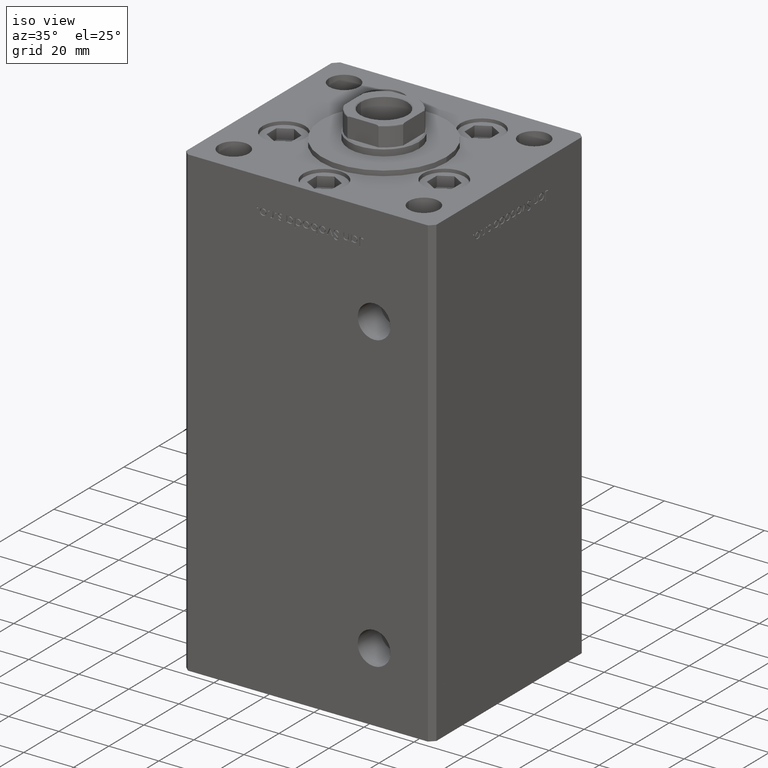
[diagram: clean part render]
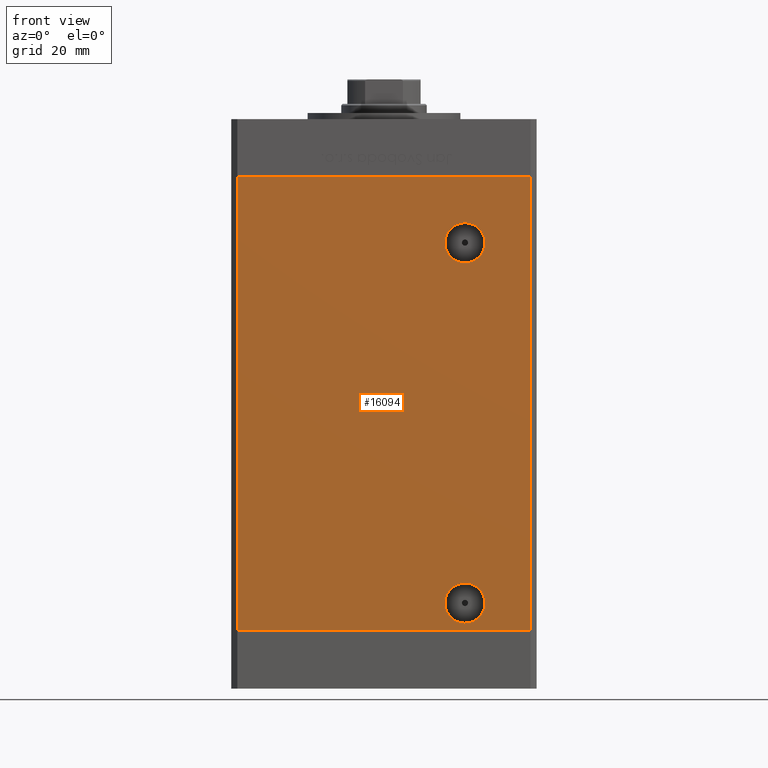
[diagram: tour spotlight — one face highlighted and labeled with its STEP entity id]
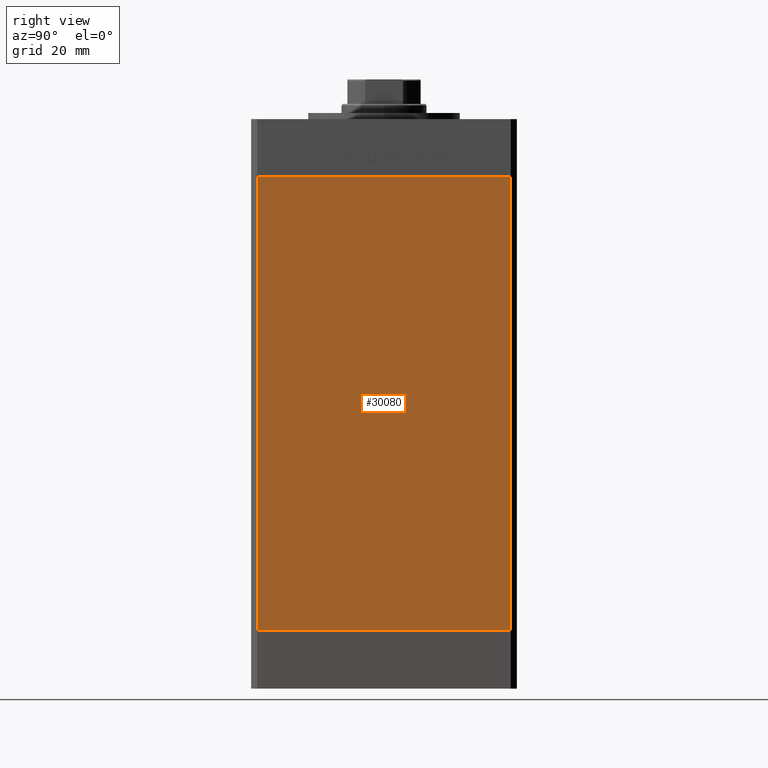
[diagram: tour spotlight — one face highlighted and labeled with its STEP entity id]
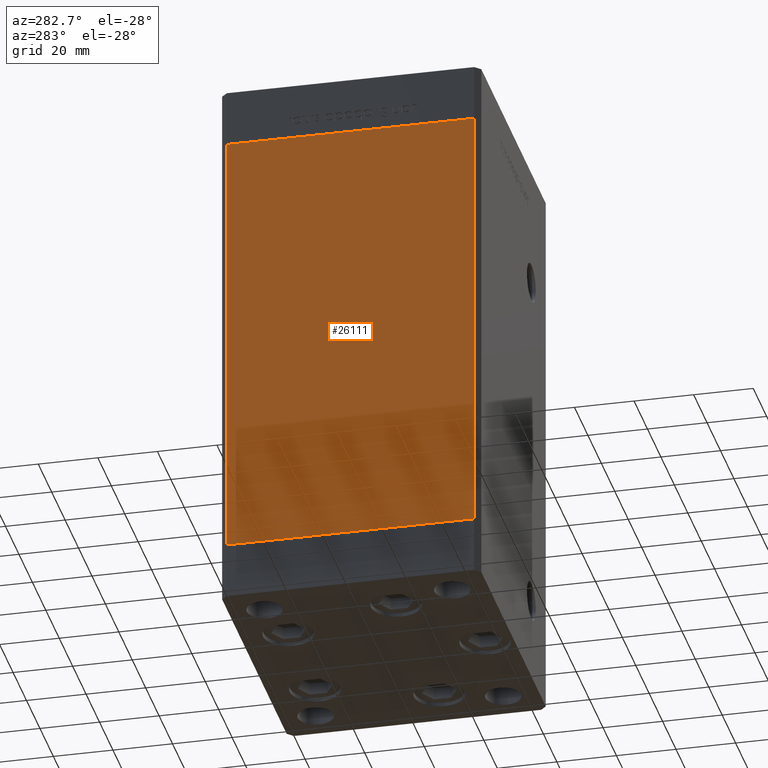
[diagram: tour spotlight — one face highlighted and labeled with its STEP entity id]
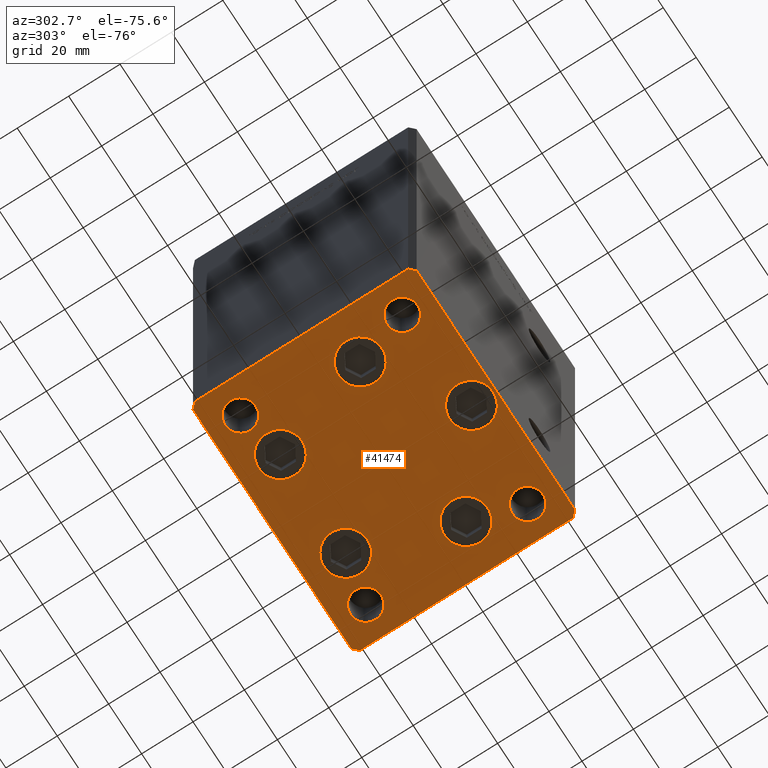
[diagram: tour spotlight — one face highlighted and labeled with its STEP entity id]
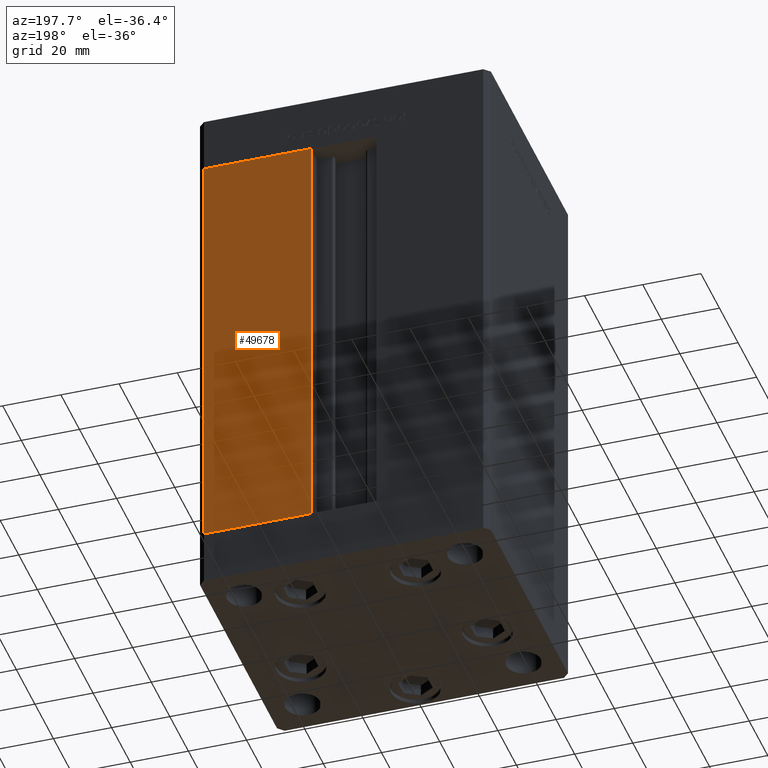
[diagram: tour spotlight — one face highlighted and labeled with its STEP entity id]
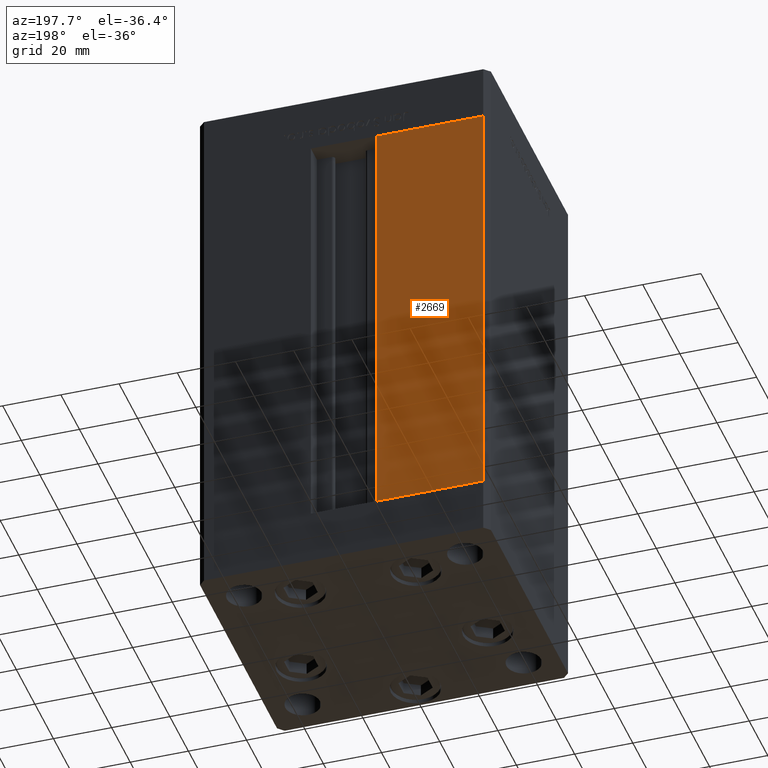
[diagram: tour spotlight — one face highlighted and labeled with its STEP entity id]
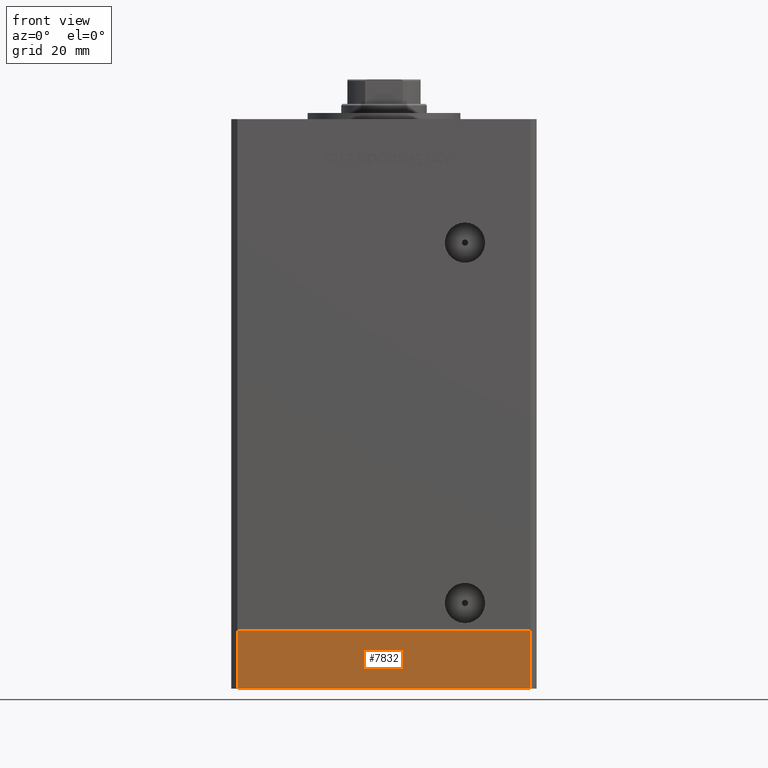
[diagram: tour spotlight — one face highlighted and labeled with its STEP entity id]
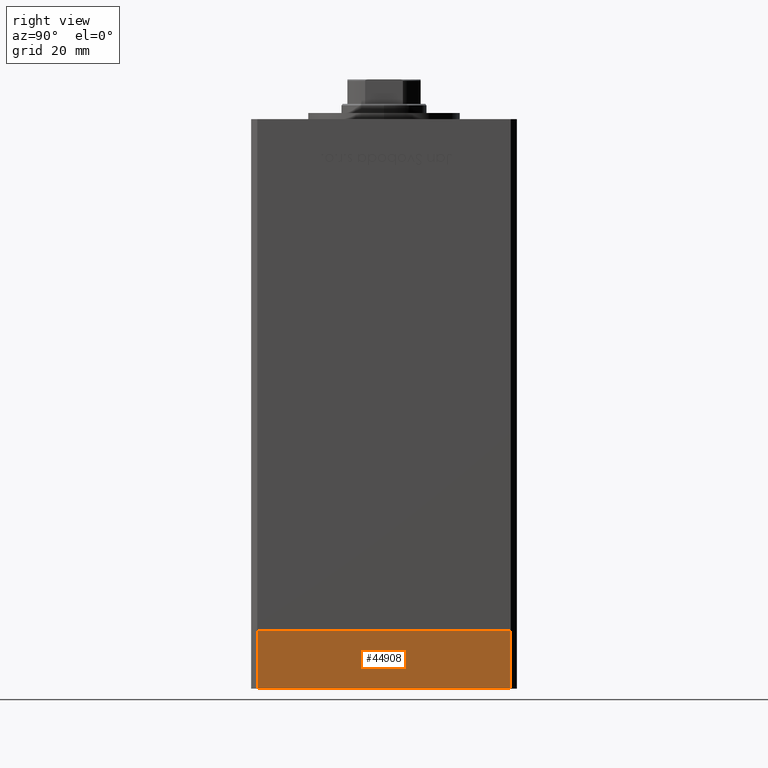
[diagram: tour spotlight — one face highlighted and labeled with its STEP entity id]
A machine part: a face-by-face anatomy tour. The part has 1185 B-rep faces; the first image is the clean iso view, then the 8 largest visible faces are spotlighted one at a time (largest first), each with its STEP entity span.

Face 1 — front view, entity #16094. In plain terms, the highlighted planar face has unit normal (0, 1, 0).
Definition (entity closure, byte-faithful):
#920 = VECTOR ( 'NONE', #2994, 1000.000000000000000 ) ;
#1150 = VERTEX_POINT ( 'NONE', #6607 ) ;
#1454 = DIRECTION ( 'NONE',  ( 1.000000000000000000, 0.000000000000000000, 0.000000000000000000 ) ) ;
#2801 = EDGE_CURVE ( 'NONE', #44540, #50249, #46455, .T. ) ;
#2848 = AXIS2_PLACEMENT_3D ( 'NONE', #38367, #14578, #10384 ) ;
#2924 = AXIS2_PLACEMENT_3D ( 'NONE', #39827, #15809, #35615 ) ;
#2994 = DIRECTION ( 'NONE',  ( -0.000000000000000000, -0.000000000000000000, -1.000000000000000000 ) ) ;
#4916 = CARTESIAN_POINT ( 'NONE',  ( 26.49999999999998934, -43.50000000000000000, 2.420000000000013252 ) ) ;
#5519 = LINE ( 'NONE', #13156, #8822 ) ;
#6253 = VERTEX_POINT ( 'NONE', #14853 ) ;
#6607 = CARTESIAN_POINT ( 'NONE',  ( 26.49999999999998934, -43.50000000000000000, 15.58000000000000362 ) ) ;
#6949 = DIRECTION ( 'NONE',  ( 0.000000000000000000, -1.000000000000000000, 0.000000000000000000 ) ) ;
#7139 = FACE_BOUND ( 'NONE', #30865, .T. ) ;
#7248 = EDGE_LOOP ( 'NONE', ( #19718, #31145, #13412, #14247 ) ) ;
#7726 = LINE ( 'NONE', #15629, #920 ) ;
#8002 = VECTOR ( 'NONE', #1454, 1000.000000000000000 ) ;
#8822 = VECTOR ( 'NONE', #29247, 1000.000000000000000 ) ;
#9529 = CARTESIAN_POINT ( 'NONE',  ( 26.49999999999997513, -43.50000000000000000, 127.0000000000000000 ) ) ;
#10384 = DIRECTION ( 'NONE',  ( 0.000000000000000000, 0.000000000000000000, -1.000000000000000000 ) ) ;
#11150 = DIRECTION ( 'NONE',  ( 0.000000000000000000, 0.000000000000000000, -1.000000000000000000 ) ) ;
#11597 = FACE_BOUND ( 'NONE', #43623, .T. ) ;
#13156 = CARTESIAN_POINT ( 'NONE',  ( -47.99999999999998579, -43.50000000000000000, 148.5000000000000000 ) ) ;
#13412 = ORIENTED_EDGE ( 'NONE', *, *, #17654, .F. ) ;
#14247 = ORIENTED_EDGE ( 'NONE', *, *, #37146, .T. ) ;
#14578 = DIRECTION ( 'NONE',  ( 0.000000000000000000, -1.000000000000000000, 0.000000000000000000 ) ) ;
#14853 = CARTESIAN_POINT ( 'NONE',  ( 47.99999999999998579, -43.50000000000000000, 0.000000000000000000 ) ) ;
#15027 = PLANE ( 'NONE',  #2924 ) ;
#15442 = EDGE_CURVE ( 'NONE', #30273, #1150, #43271, .T. ) ;
#15629 = CARTESIAN_POINT ( 'NONE',  ( 47.99999999999998579, -43.50000000000000000, 148.5000000000000000 ) ) ;
#15809 = DIRECTION ( 'NONE',  ( 0.000000000000000000, 1.000000000000000000, 0.000000000000000000 ) ) ;
#16094 = ADVANCED_FACE ( 'NONE', ( #7139, #31906, #11597 ), #15027, .F. ) ;
#16221 = CARTESIAN_POINT ( 'NONE',  ( -47.99999999999998579, -43.50000000000000000, 0.000000000000000000 ) ) ;
#16962 = CARTESIAN_POINT ( 'NONE',  ( 47.99999999999998579, -43.50000000000000000, 148.5000000000000000 ) ) ;
#17654 = EDGE_CURVE ( 'NONE', #27277, #46114, #37598, .T. ) ;
#17699 = DIRECTION ( 'NONE',  ( -0.000000000000000000, 1.000000000000000000, -0.000000000000000000 ) ) ;
#18378 = DIRECTION ( 'NONE',  ( 0.000000000000000000, 0.000000000000000000, -1.000000000000000000 ) ) ;
#18425 = VERTEX_POINT ( 'NONE', #21318 ) ;
#19718 = ORIENTED_EDGE ( 'NONE', *, *, #35298, .T. ) ;
#19770 = CIRCLE ( 'NONE', #26536, 6.579999999999994742 ) ;
#19932 = LINE ( 'NONE', #16221, #49185 ) ;
#20006 = ORIENTED_EDGE ( 'NONE', *, *, #41221, .T. ) ;
#21112 = EDGE_CURVE ( 'NONE', #46114, #6253, #7726, .T. ) ;
#21219 = CARTESIAN_POINT ( 'NONE',  ( -47.99999999999998579, -43.50000000000000000, 148.5000000000000000 ) ) ;
#21318 = CARTESIAN_POINT ( 'NONE',  ( -47.99999999999998579, -43.50000000000000000, 0.000000000000000000 ) ) ;
#23614 = CARTESIAN_POINT ( 'NONE',  ( 26.49999999999997513, -43.50000000000000000, 133.5800000000000125 ) ) ;
#24719 = CARTESIAN_POINT ( 'NONE',  ( -47.99999999999998579, -43.50000000000000000, 148.5000000000000000 ) ) ;
#24847 = CARTESIAN_POINT ( 'NONE',  ( 26.49999999999997513, -43.50000000000000000, 120.4200000000000159 ) ) ;
#26536 = AXIS2_PLACEMENT_3D ( 'NONE', #52042, #6949, #11150 ) ;
#27277 = VERTEX_POINT ( 'NONE', #24719 ) ;
#28450 = ORIENTED_EDGE ( 'NONE', *, *, #37901, .F. ) ;
#28933 = ORIENTED_EDGE ( 'NONE', *, *, #15442, .F. ) ;
#29247 = DIRECTION ( 'NONE',  ( -0.000000000000000000, -0.000000000000000000, -1.000000000000000000 ) ) ;
#29580 = AXIS2_PLACEMENT_3D ( 'NONE', #35503, #51601, #18378 ) ;
#30273 = VERTEX_POINT ( 'NONE', #4916 ) ;
#30720 = AXIS2_PLACEMENT_3D ( 'NONE', #9529, #17699, #38542 ) ;
#30865 = EDGE_LOOP ( 'NONE', ( #28933, #28450 ) ) ;
#31145 = ORIENTED_EDGE ( 'NONE', *, *, #21112, .F. ) ;
#31906 = FACE_OUTER_BOUND ( 'NONE', #7248, .T. ) ;
#35298 = EDGE_CURVE ( 'NONE', #18425, #6253, #19932, .T. ) ;
#35361 = ORIENTED_EDGE ( 'NONE', *, *, #2801, .T. ) ;
#35503 = CARTESIAN_POINT ( 'NONE',  ( 26.49999999999997513, -43.50000000000000000, 127.0000000000000000 ) ) ;
#35615 = DIRECTION ( 'NONE',  ( 0.000000000000000000, -0.000000000000000000, 1.000000000000000000 ) ) ;
#37146 = EDGE_CURVE ( 'NONE', #27277, #18425, #5519, .T. ) ;
#37598 = LINE ( 'NONE', #21219, #8002 ) ;
#37901 = EDGE_CURVE ( 'NONE', #1150, #30273, #19770, .T. ) ;
#38367 = CARTESIAN_POINT ( 'NONE',  ( 26.49999999999998934, -43.50000000000000000, 9.000000000000007105 ) ) ;
#38542 = DIRECTION ( 'NONE',  ( 0.000000000000000000, 0.000000000000000000, -1.000000000000000000 ) ) ;
#39827 = CARTESIAN_POINT ( 'NONE',  ( -47.99999999999998579, -43.50000000000000000, 148.5000000000000000 ) ) ;
#40494 = DIRECTION ( 'NONE',  ( 1.000000000000000000, 0.000000000000000000, 0.000000000000000000 ) ) ;
#40818 = CIRCLE ( 'NONE', #30720, 6.579999999999988525 ) ;
#41221 = EDGE_CURVE ( 'NONE', #50249, #44540, #40818, .T. ) ;
#43271 = CIRCLE ( 'NONE', #2848, 6.579999999999994742 ) ;
#43623 = EDGE_LOOP ( 'NONE', ( #35361, #20006 ) ) ;
#44540 = VERTEX_POINT ( 'NONE', #24847 ) ;
#46114 = VERTEX_POINT ( 'NONE', #16962 ) ;
#46455 = CIRCLE ( 'NONE', #29580, 6.579999999999988525 ) ;
#49185 = VECTOR ( 'NONE', #40494, 1000.000000000000000 ) ;
#50249 = VERTEX_POINT ( 'NONE', #23614 ) ;
#51601 = DIRECTION ( 'NONE',  ( -0.000000000000000000, 1.000000000000000000, -0.000000000000000000 ) ) ;
#52042 = CARTESIAN_POINT ( 'NONE',  ( 26.49999999999998934, -43.50000000000000000, 9.000000000000007105 ) ) ;

Face 2 — right view, entity #30080. In plain terms, the highlighted planar face has unit normal (1, -0, 0).
Definition (entity closure, byte-faithful):
#1734 = CARTESIAN_POINT ( 'NONE',  ( 49.99999999999998579, -41.49999999999999289, 0.000000000000000000 ) ) ;
#2044 = VECTOR ( 'NONE', #27759, 1000.000000000000000 ) ;
#3831 = VECTOR ( 'NONE', #26679, 1000.000000000000000 ) ;
#6021 = DIRECTION ( 'NONE',  ( 3.344045254895050480E-16, 1.000000000000000000, 0.000000000000000000 ) ) ;
#6376 = LINE ( 'NONE', #21678, #3831 ) ;
#8776 = CARTESIAN_POINT ( 'NONE',  ( 49.99999999999998579, -41.49999999999999289, 148.5000000000000000 ) ) ;
#9187 = CARTESIAN_POINT ( 'NONE',  ( 50.00000000000001421, 41.49999999999999289, 148.5000000000000000 ) ) ;
#9975 = CARTESIAN_POINT ( 'NONE',  ( 50.00000000000001421, 41.49999999999999289, 148.5000000000000000 ) ) ;
#10069 = VERTEX_POINT ( 'NONE', #9187 ) ;
#10364 = VECTOR ( 'NONE', #26570, 1000.000000000000000 ) ;
#11655 = CARTESIAN_POINT ( 'NONE',  ( 49.99999999999998579, -41.49999999999999289, 148.5000000000000000 ) ) ;
#15196 = CARTESIAN_POINT ( 'NONE',  ( 50.00000000000001421, 41.49999999999999289, 148.5000000000000000 ) ) ;
#16194 = AXIS2_PLACEMENT_3D ( 'NONE', #9975, #33985, #6021 ) ;
#17045 = VECTOR ( 'NONE', #40007, 1000.000000000000000 ) ;
#17882 = PLANE ( 'NONE',  #16194 ) ;
#17932 = VERTEX_POINT ( 'NONE', #8776 ) ;
#21678 = CARTESIAN_POINT ( 'NONE',  ( 50.00000000000001421, 41.49999999999999289, 148.5000000000000000 ) ) ;
#23675 = VERTEX_POINT ( 'NONE', #27808 ) ;
#26247 = VERTEX_POINT ( 'NONE', #1734 ) ;
#26570 = DIRECTION ( 'NONE',  ( -3.344045254895050973E-16, -1.000000000000000000, 0.000000000000000000 ) ) ;
#26679 = DIRECTION ( 'NONE',  ( -3.344045254895050973E-16, -1.000000000000000000, 0.000000000000000000 ) ) ;
#27759 = DIRECTION ( 'NONE',  ( -0.000000000000000000, -0.000000000000000000, -1.000000000000000000 ) ) ;
#27808 = CARTESIAN_POINT ( 'NONE',  ( 50.00000000000001421, 41.49999999999999289, 0.000000000000000000 ) ) ;
#29725 = LINE ( 'NONE', #41602, #10364 ) ;
#30080 = ADVANCED_FACE ( 'NONE', ( #38207 ), #17882, .T. ) ;
#30111 = EDGE_CURVE ( 'NONE', #10069, #23675, #43696, .T. ) ;
#31759 = EDGE_CURVE ( 'NONE', #23675, #26247, #29725, .T. ) ;
#31919 = ORIENTED_EDGE ( 'NONE', *, *, #30111, .F. ) ;
#33985 = DIRECTION ( 'NONE',  ( 1.000000000000000000, -3.344045254895050480E-16, 0.000000000000000000 ) ) ;
#34131 = LINE ( 'NONE', #11655, #2044 ) ;
#36047 = ORIENTED_EDGE ( 'NONE', *, *, #40982, .T. ) ;
#38207 = FACE_OUTER_BOUND ( 'NONE', #38229, .T. ) ;
#38229 = EDGE_LOOP ( 'NONE', ( #46865, #31919, #45252, #36047 ) ) ;
#38777 = EDGE_CURVE ( 'NONE', #10069, #17932, #6376, .T. ) ;
#40007 = DIRECTION ( 'NONE',  ( -0.000000000000000000, -0.000000000000000000, -1.000000000000000000 ) ) ;
#40982 = EDGE_CURVE ( 'NONE', #17932, #26247, #34131, .T. ) ;
#41602 = CARTESIAN_POINT ( 'NONE',  ( 50.00000000000001421, 41.49999999999999289, 0.000000000000000000 ) ) ;
#43696 = LINE ( 'NONE', #15196, #17045 ) ;
#45252 = ORIENTED_EDGE ( 'NONE', *, *, #38777, .T. ) ;
#46865 = ORIENTED_EDGE ( 'NONE', *, *, #31759, .F. ) ;

Face 3 — auxiliary view, entity #26111. In plain terms, the highlighted planar face has unit normal (1, 0, 0).
Definition (entity closure, byte-faithful):
#3 = VERTEX_POINT ( 'NONE', #3470 ) ;
#600 = DIRECTION ( 'NONE',  ( -0.000000000000000000, -0.000000000000000000, -1.000000000000000000 ) ) ;
#1529 = EDGE_CURVE ( 'NONE', #31680, #24660, #42930, .T. ) ;
#2844 = DIRECTION ( 'NONE',  ( 3.344045254895050973E-16, -1.000000000000000000, 0.000000000000000000 ) ) ;
#3470 = CARTESIAN_POINT ( 'NONE',  ( -50.00000000000001421, 41.49999999999999289, 148.5000000000000000 ) ) ;
#3772 = VERTEX_POINT ( 'NONE', #26001 ) ;
#6130 = CARTESIAN_POINT ( 'NONE',  ( -49.99999999999998579, -41.49999999999999289, 0.000000000000000000 ) ) ;
#6795 = CARTESIAN_POINT ( 'NONE',  ( -50.00000000000001421, 41.49999999999999289, 0.000000000000000000 ) ) ;
#6827 = AXIS2_PLACEMENT_3D ( 'NONE', #51619, #51351, #31029 ) ;
#10186 = LINE ( 'NONE', #18357, #43917 ) ;
#11225 = EDGE_LOOP ( 'NONE', ( #35518, #29529, #23870, #28900 ) ) ;
#18357 = CARTESIAN_POINT ( 'NONE',  ( -50.00000000000001421, 41.49999999999999289, 148.5000000000000000 ) ) ;
#23643 = PLANE ( 'NONE',  #6827 ) ;
#23870 = ORIENTED_EDGE ( 'NONE', *, *, #27482, .F. ) ;
#24660 = VERTEX_POINT ( 'NONE', #6130 ) ;
#26001 = CARTESIAN_POINT ( 'NONE',  ( -49.99999999999998579, -41.49999999999999289, 148.5000000000000000 ) ) ;
#26111 = ADVANCED_FACE ( 'NONE', ( #39224 ), #23643, .F. ) ;
#27482 = EDGE_CURVE ( 'NONE', #3, #3772, #10186, .T. ) ;
#28363 = VECTOR ( 'NONE', #33145, 1000.000000000000000 ) ;
#28664 = LINE ( 'NONE', #43977, #28363 ) ;
#28900 = ORIENTED_EDGE ( 'NONE', *, *, #47172, .T. ) ;
#29529 = ORIENTED_EDGE ( 'NONE', *, *, #38613, .F. ) ;
#30291 = CARTESIAN_POINT ( 'NONE',  ( -50.00000000000001421, 41.49999999999999289, 0.000000000000000000 ) ) ;
#31029 = DIRECTION ( 'NONE',  ( -3.344045254895050480E-16, 1.000000000000000000, 0.000000000000000000 ) ) ;
#31680 = VERTEX_POINT ( 'NONE', #30291 ) ;
#33145 = DIRECTION ( 'NONE',  ( -0.000000000000000000, -0.000000000000000000, -1.000000000000000000 ) ) ;
#35518 = ORIENTED_EDGE ( 'NONE', *, *, #1529, .T. ) ;
#36292 = VECTOR ( 'NONE', #2844, 1000.000000000000000 ) ;
#37257 = LINE ( 'NONE', #44645, #40033 ) ;
#38613 = EDGE_CURVE ( 'NONE', #3772, #24660, #37257, .T. ) ;
#39224 = FACE_OUTER_BOUND ( 'NONE', #11225, .T. ) ;
#40033 = VECTOR ( 'NONE', #600, 1000.000000000000000 ) ;
#42930 = LINE ( 'NONE', #6795, #36292 ) ;
#43917 = VECTOR ( 'NONE', #46588, 1000.000000000000000 ) ;
#43977 = CARTESIAN_POINT ( 'NONE',  ( -50.00000000000001421, 41.49999999999999289, 148.5000000000000000 ) ) ;
#44645 = CARTESIAN_POINT ( 'NONE',  ( -49.99999999999998579, -41.49999999999999289, 148.5000000000000000 ) ) ;
#46588 = DIRECTION ( 'NONE',  ( 3.344045254895050973E-16, -1.000000000000000000, 0.000000000000000000 ) ) ;
#47172 = EDGE_CURVE ( 'NONE', #3, #31680, #28664, .T. ) ;
#51351 = DIRECTION ( 'NONE',  ( 1.000000000000000000, 3.344045254895050480E-16, -0.000000000000000000 ) ) ;
#51619 = CARTESIAN_POINT ( 'NONE',  ( -50.00000000000001421, 41.49999999999999289, 148.5000000000000000 ) ) ;

Face 4 — auxiliary view, entity #41474. In plain terms, the highlighted planar face has unit normal (0, 0, -1).
Definition (entity closure, byte-faithful):
#260 = FACE_BOUND ( 'NONE', #5684, .T. ) ;
#472 = CARTESIAN_POINT ( 'NONE',  ( -32.05550741379015278, -11.33333333333333925, 0.000000000000000000 ) ) ;
#651 = LINE ( 'NONE', #16713, #34871 ) ;
#825 = CARTESIAN_POINT ( 'NONE',  ( 28.32068048781373193, 27.62500000000000000, 0.000000000000000000 ) ) ;
#981 = DIRECTION ( 'NONE',  ( 1.000000000000000000, 0.000000000000000000, 0.000000000000000000 ) ) ;
#1029 = VERTEX_POINT ( 'NONE', #41966 ) ;
#1306 = AXIS2_PLACEMENT_3D ( 'NONE', #19910, #23348, #36011 ) ;
#1726 = LINE ( 'NONE', #42083, #33335 ) ;
#1887 = DIRECTION ( 'NONE',  ( 8.360113137237628665E-17, -1.000000000000000000, 0.000000000000000000 ) ) ;
#2309 = AXIS2_PLACEMENT_3D ( 'NONE', #24090, #44659, #35973 ) ;
#2464 = EDGE_CURVE ( 'NONE', #31479, #32606, #50672, .T. ) ;
#2511 = EDGE_LOOP ( 'NONE', ( #31589, #13203 ) ) ;
#2565 = CARTESIAN_POINT ( 'NONE',  ( -32.00000000000000000, 31.50000000000000000, 0.000000000000000000 ) ) ;
#2778 = VERTEX_POINT ( 'NONE', #18626 ) ;
#2875 = CIRCLE ( 'NONE', #15505, 5.999999999999998224 ) ;
#3637 = ORIENTED_EDGE ( 'NONE', *, *, #48933, .T. ) ;
#3998 = AXIS2_PLACEMENT_3D ( 'NONE', #32578, #43404, #39441 ) ;
#4105 = ORIENTED_EDGE ( 'NONE', *, *, #13687, .T. ) ;
#4713 = DIRECTION ( 'NONE',  ( 1.000000000000000000, 0.000000000000000000, 0.000000000000000000 ) ) ;
#4787 = AXIS2_PLACEMENT_3D ( 'NONE', #12364, #36897, #4713 ) ;
#4808 = EDGE_CURVE ( 'NONE', #33948, #25311, #6880, .T. ) ;
#4960 = VERTEX_POINT ( 'NONE', #36258 ) ;
#4996 = FACE_OUTER_BOUND ( 'NONE', #7278, .T. ) ;
#5058 = ORIENTED_EDGE ( 'NONE', *, *, #46723, .F. ) ;
#5092 = EDGE_LOOP ( 'NONE', ( #45392, #41179 ) ) ;
#5684 = EDGE_LOOP ( 'NONE', ( #4105, #42970 ) ) ;
#5957 = DIRECTION ( 'NONE',  ( -0.7071067811865463515, -0.7071067811865487940, 0.000000000000000000 ) ) ;
#6104 = LINE ( 'NONE', #41976, #46880 ) ;
#6159 = AXIS2_PLACEMENT_3D ( 'NONE', #44478, #8335, #36567 ) ;
#6700 = CARTESIAN_POINT ( 'NONE',  ( -44.00000000000000000, -31.50000000000000000, 0.000000000000000000 ) ) ;
#6880 = CIRCLE ( 'NONE', #49009, 5.999999999999998224 ) ;
#7094 = CIRCLE ( 'NONE', #28189, 8.500000000000000000 ) ;
#7192 = VERTEX_POINT ( 'NONE', #22614 ) ;
#7224 = DIRECTION ( 'NONE',  ( 1.000000000000000000, 0.000000000000000000, 0.000000000000000000 ) ) ;
#7278 = EDGE_LOOP ( 'NONE', ( #47713, #20522, #22879, #31426, #40435, #9288, #8367, #19544 ) ) ;
#7652 = VERTEX_POINT ( 'NONE', #13841 ) ;
#8335 = DIRECTION ( 'NONE',  ( 0.000000000000000000, -0.000000000000000000, -1.000000000000000000 ) ) ;
#8367 = ORIENTED_EDGE ( 'NONE', *, *, #30393, .T. ) ;
#8671 = ORIENTED_EDGE ( 'NONE', *, *, #12657, .T. ) ;
#8696 = CARTESIAN_POINT ( 'NONE',  ( 0.000000000000000000, 0.000000000000000000, 0.000000000000000000 ) ) ;
#9199 = FACE_BOUND ( 'NONE', #42122, .T. ) ;
#9288 = ORIENTED_EDGE ( 'NONE', *, *, #39111, .T. ) ;
#9713 = EDGE_CURVE ( 'NONE', #4960, #47786, #33040, .T. ) ;
#9723 = DIRECTION ( 'NONE',  ( 0.000000000000000000, -0.000000000000000000, -1.000000000000000000 ) ) ;
#9729 = VERTEX_POINT ( 'NONE', #825 ) ;
#9815 = EDGE_CURVE ( 'NONE', #47115, #21447, #18987, .T. ) ;
#10122 = DIRECTION ( 'NONE',  ( 1.000000000000000000, 0.000000000000000000, 0.000000000000000000 ) ) ;
#10307 = DIRECTION ( 'NONE',  ( 0.000000000000000000, -0.000000000000000000, -1.000000000000000000 ) ) ;
#10377 = CIRCLE ( 'NONE', #20457, 5.999999999999998224 ) ;
#10439 = VECTOR ( 'NONE', #17588, 1000.000000000000000 ) ;
#11065 = DIRECTION ( 'NONE',  ( 1.000000000000000000, 0.000000000000000000, 0.000000000000000000 ) ) ;
#12364 = CARTESIAN_POINT ( 'NONE',  ( -19.82068048781373903, 27.62499999999999645, 0.000000000000000000 ) ) ;
#12388 = FACE_BOUND ( 'NONE', #32866, .T. ) ;
#12657 = EDGE_CURVE ( 'NONE', #2778, #24525, #10377, .T. ) ;
#13109 = DIRECTION ( 'NONE',  ( 0.000000000000000000, -0.000000000000000000, -1.000000000000000000 ) ) ;
#13159 = FACE_BOUND ( 'NONE', #5092, .T. ) ;
#13203 = ORIENTED_EDGE ( 'NONE', *, *, #23307, .T. ) ;
#13239 = CIRCLE ( 'NONE', #3998, 5.999999999999998224 ) ;
#13634 = VECTOR ( 'NONE', #43515, 1000.000000000000114 ) ;
#13687 = EDGE_CURVE ( 'NONE', #47786, #4960, #45772, .T. ) ;
#13841 = CARTESIAN_POINT ( 'NONE',  ( -50.00000000000000711, 41.49999999999995026, 0.000000000000000000 ) ) ;
#13990 = ORIENTED_EDGE ( 'NONE', *, *, #36415, .T. ) ;
#14276 = ORIENTED_EDGE ( 'NONE', *, *, #37790, .F. ) ;
#14474 = VERTEX_POINT ( 'NONE', #19059 ) ;
#14755 = DIRECTION ( 'NONE',  ( -0.7071067811865474617, 0.7071067811865474617, 0.000000000000000000 ) ) ;
#15505 = AXIS2_PLACEMENT_3D ( 'NONE', #51276, #43612, #19343 ) ;
#15706 = EDGE_LOOP ( 'NONE', ( #14276, #45313 ) ) ;
#16332 = CARTESIAN_POINT ( 'NONE',  ( 49.99999999999992184, 41.49999999999998579, 0.000000000000000000 ) ) ;
#16713 = CARTESIAN_POINT ( 'NONE',  ( -47.99999999999999289, -43.50000000000001421, 0.000000000000000000 ) ) ;
#17163 = ORIENTED_EDGE ( 'NONE', *, *, #36353, .T. ) ;
#17236 = DIRECTION ( 'NONE',  ( 1.000000000000000000, 0.000000000000000000, 0.000000000000000000 ) ) ;
#17251 = EDGE_CURVE ( 'NONE', #47447, #47272, #7094, .T. ) ;
#17314 = VECTOR ( 'NONE', #14755, 1000.000000000000114 ) ;
#17588 = DIRECTION ( 'NONE',  ( -1.000000000000000000, -3.614007241618350743E-16, 0.000000000000000000 ) ) ;
#18467 = CARTESIAN_POINT ( 'NONE',  ( 32.05550741379015278, -11.33333333333333037, 0.000000000000000000 ) ) ;
#18592 = CARTESIAN_POINT ( 'NONE',  ( -48.00000000000000711, 43.49999999999996447, 0.000000000000000000 ) ) ;
#18626 = CARTESIAN_POINT ( 'NONE',  ( 44.00000000000000000, -31.49999999999999289, 0.000000000000000000 ) ) ;
#18969 = EDGE_CURVE ( 'NONE', #51407, #7192, #29073, .T. ) ;
#18987 = LINE ( 'NONE', #19505, #13634 ) ;
#19059 = CARTESIAN_POINT ( 'NONE',  ( 11.32068048781373015, 27.62500000000000000, 0.000000000000000000 ) ) ;
#19343 = DIRECTION ( 'NONE',  ( 1.000000000000000000, 0.000000000000000000, 0.000000000000000000 ) ) ;
#19392 = VERTEX_POINT ( 'NONE', #28799 ) ;
#19504 = LINE ( 'NONE', #43765, #17314 ) ;
#19505 = CARTESIAN_POINT ( 'NONE',  ( -50.00000000000000000, -41.50000000000000000, 0.000000000000000000 ) ) ;
#19544 = ORIENTED_EDGE ( 'NONE', *, *, #47494, .T. ) ;
#19910 = CARTESIAN_POINT ( 'NONE',  ( -37.99999999999999289, -31.50000000000000000, 0.000000000000000000 ) ) ;
#20086 = DIRECTION ( 'NONE',  ( 0.000000000000000000, -0.000000000000000000, -1.000000000000000000 ) ) ;
#20266 = CIRCLE ( 'NONE', #51448, 8.500000000000000000 ) ;
#20267 = ORIENTED_EDGE ( 'NONE', *, *, #50058, .T. ) ;
#20297 = FACE_BOUND ( 'NONE', #27379, .T. ) ;
#20457 = AXIS2_PLACEMENT_3D ( 'NONE', #46132, #9723, #46381 ) ;
#20522 = ORIENTED_EDGE ( 'NONE', *, *, #40887, .T. ) ;
#20935 = EDGE_CURVE ( 'NONE', #9729, #14474, #20266, .T. ) ;
#21044 = CIRCLE ( 'NONE', #49721, 8.500000000000000000 ) ;
#21447 = VERTEX_POINT ( 'NONE', #43413 ) ;
#22614 = CARTESIAN_POINT ( 'NONE',  ( -31.99999999999998579, -31.50000000000000000, 0.000000000000000000 ) ) ;
#22620 = DIRECTION ( 'NONE',  ( 0.000000000000000000, -0.000000000000000000, -1.000000000000000000 ) ) ;
#22879 = ORIENTED_EDGE ( 'NONE', *, *, #44960, .T. ) ;
#23182 = CARTESIAN_POINT ( 'NONE',  ( 4.163799117101000559E-15, -34.00000000000000000, 0.000000000000000000 ) ) ;
#23307 = EDGE_CURVE ( 'NONE', #47272, #47447, #21044, .T. ) ;
#23348 = DIRECTION ( 'NONE',  ( 0.000000000000000000, -0.000000000000000000, -1.000000000000000000 ) ) ;
#23468 = DIRECTION ( 'NONE',  ( 1.000000000000000000, 0.000000000000000000, 0.000000000000000000 ) ) ;
#24050 = CARTESIAN_POINT ( 'NONE',  ( 47.99999999999999289, -43.50000000000001421, 0.000000000000000000 ) ) ;
#24090 = CARTESIAN_POINT ( 'NONE',  ( -19.82068048781373903, 27.62499999999999645, 0.000000000000000000 ) ) ;
#24469 = CARTESIAN_POINT ( 'NONE',  ( 47.99999999999990763, 43.50000000000000000, 0.000000000000000000 ) ) ;
#24525 = VERTEX_POINT ( 'NONE', #29079 ) ;
#24549 = VERTEX_POINT ( 'NONE', #33044 ) ;
#24782 = DIRECTION ( 'NONE',  ( -0.000000000000000000, 0.000000000000000000, 1.000000000000000000 ) ) ;
#24995 = CIRCLE ( 'NONE', #4787, 8.500000000000000000 ) ;
#25311 = VERTEX_POINT ( 'NONE', #2565 ) ;
#25437 = DIRECTION ( 'NONE',  ( 0.000000000000000000, -0.000000000000000000, -1.000000000000000000 ) ) ;
#25702 = CIRCLE ( 'NONE', #30727, 5.999999999999998224 ) ;
#25706 = DIRECTION ( 'NONE',  ( -0.000000000000000000, 0.000000000000000000, 1.000000000000000000 ) ) ;
#26533 = DIRECTION ( 'NONE',  ( -1.003213576468515193E-15, 1.000000000000000000, 0.000000000000000000 ) ) ;
#26562 = AXIS2_PLACEMENT_3D ( 'NONE', #47201, #35334, #11065 ) ;
#26749 = VERTEX_POINT ( 'NONE', #48336 ) ;
#27379 = EDGE_LOOP ( 'NONE', ( #17163, #30798 ) ) ;
#27562 = CARTESIAN_POINT ( 'NONE',  ( -38.00000000000000000, 31.50000000000000000, 0.000000000000000000 ) ) ;
#28125 = CARTESIAN_POINT ( 'NONE',  ( -11.32068048781373726, 27.62499999999999645, 0.000000000000000000 ) ) ;
#28189 = AXIS2_PLACEMENT_3D ( 'NONE', #472, #13109, #981 ) ;
#28281 = CARTESIAN_POINT ( 'NONE',  ( 32.05550741379015278, -11.33333333333333037, 0.000000000000000000 ) ) ;
#28480 = FACE_BOUND ( 'NONE', #15706, .T. ) ;
#28799 = CARTESIAN_POINT ( 'NONE',  ( -48.00000000000000711, 43.49999999999996447, 0.000000000000000000 ) ) ;
#28894 = CARTESIAN_POINT ( 'NONE',  ( 8.500000000000003553, -34.00000000000000000, 0.000000000000000000 ) ) ;
#29023 = AXIS2_PLACEMENT_3D ( 'NONE', #8696, #24782, #29251 ) ;
#29073 = CIRCLE ( 'NONE', #1306, 6.000000000000005329 ) ;
#29079 = CARTESIAN_POINT ( 'NONE',  ( 32.00000000000000000, -31.49999999999999289, 0.000000000000000000 ) ) ;
#29251 = DIRECTION ( 'NONE',  ( 1.000000000000000000, 0.000000000000000000, 0.000000000000000000 ) ) ;
#30301 = ORIENTED_EDGE ( 'NONE', *, *, #43651, .T. ) ;
#30393 = EDGE_CURVE ( 'NONE', #19392, #7652, #34446, .T. ) ;
#30727 = AXIS2_PLACEMENT_3D ( 'NONE', #46782, #25706, #10122 ) ;
#30798 = ORIENTED_EDGE ( 'NONE', *, *, #20935, .T. ) ;
#30862 = CARTESIAN_POINT ( 'NONE',  ( -40.55550741379015278, -11.33333333333333925, 0.000000000000000000 ) ) ;
#31426 = ORIENTED_EDGE ( 'NONE', *, *, #39935, .T. ) ;
#31479 = VERTEX_POINT ( 'NONE', #35158 ) ;
#31589 = ORIENTED_EDGE ( 'NONE', *, *, #17251, .T. ) ;
#31897 = DIRECTION ( 'NONE',  ( -0.000000000000000000, 0.000000000000000000, 1.000000000000000000 ) ) ;
#32387 = AXIS2_PLACEMENT_3D ( 'NONE', #47052, #43878, #7224 ) ;
#32479 = CARTESIAN_POINT ( 'NONE',  ( -44.00000000000000000, 31.50000000000000000, 0.000000000000000000 ) ) ;
#32578 = CARTESIAN_POINT ( 'NONE',  ( 38.00000000000000000, 31.49999999999999289, 0.000000000000000000 ) ) ;
#32597 = VERTEX_POINT ( 'NONE', #28125 ) ;
#32606 = VERTEX_POINT ( 'NONE', #28894 ) ;
#32654 = EDGE_CURVE ( 'NONE', #32606, #31479, #51640, .T. ) ;
#32866 = EDGE_LOOP ( 'NONE', ( #3637, #20267 ) ) ;
#32902 = LINE ( 'NONE', #24469, #10439 ) ;
#33040 = CIRCLE ( 'NONE', #48185, 8.499999999999992895 ) ;
#33044 = CARTESIAN_POINT ( 'NONE',  ( 32.00000000000000000, 31.49999999999999289, 0.000000000000000000 ) ) ;
#33335 = VECTOR ( 'NONE', #34431, 1000.000000000000000 ) ;
#33948 = VERTEX_POINT ( 'NONE', #32479 ) ;
#33975 = VERTEX_POINT ( 'NONE', #24050 ) ;
#34056 = VECTOR ( 'NONE', #26533, 1000.000000000000000 ) ;
#34431 = DIRECTION ( 'NONE',  ( 0.7071067811865463515, 0.7071067811865487940, 0.000000000000000000 ) ) ;
#34446 = LINE ( 'NONE', #18592, #49068 ) ;
#34871 = VECTOR ( 'NONE', #17236, 1000.000000000000000 ) ;
#35089 = CARTESIAN_POINT ( 'NONE',  ( 38.00000000000000000, 31.49999999999999289, 0.000000000000000000 ) ) ;
#35158 = CARTESIAN_POINT ( 'NONE',  ( -8.499999999999996447, -34.00000000000000000, 0.000000000000000000 ) ) ;
#35172 = EDGE_LOOP ( 'NONE', ( #8671, #13990 ) ) ;
#35334 = DIRECTION ( 'NONE',  ( 0.000000000000000000, -0.000000000000000000, -1.000000000000000000 ) ) ;
#35673 = CARTESIAN_POINT ( 'NONE',  ( -23.55550741379015278, -11.33333333333333748, 0.000000000000000000 ) ) ;
#35973 = DIRECTION ( 'NONE',  ( 1.000000000000000000, 0.000000000000000000, 0.000000000000000000 ) ) ;
#36011 = DIRECTION ( 'NONE',  ( 1.000000000000000000, 0.000000000000000000, 0.000000000000000000 ) ) ;
#36190 = DIRECTION ( 'NONE',  ( 1.000000000000000000, 0.000000000000000000, 0.000000000000000000 ) ) ;
#36258 = CARTESIAN_POINT ( 'NONE',  ( 40.55550741379014568, -11.33333333333332860, 0.000000000000000000 ) ) ;
#36353 = EDGE_CURVE ( 'NONE', #14474, #9729, #40791, .T. ) ;
#36415 = EDGE_CURVE ( 'NONE', #24525, #2778, #2875, .T. ) ;
#36567 = DIRECTION ( 'NONE',  ( 1.000000000000000000, 0.000000000000000000, 0.000000000000000000 ) ) ;
#36839 = CIRCLE ( 'NONE', #2309, 8.500000000000000000 ) ;
#36897 = DIRECTION ( 'NONE',  ( 0.000000000000000000, -0.000000000000000000, -1.000000000000000000 ) ) ;
#37321 = CARTESIAN_POINT ( 'NONE',  ( 19.82068048781373193, 27.62500000000000000, 0.000000000000000000 ) ) ;
#37762 = DIRECTION ( 'NONE',  ( 1.000000000000000000, 0.000000000000000000, 0.000000000000000000 ) ) ;
#37790 = EDGE_CURVE ( 'NONE', #25311, #33948, #25702, .T. ) ;
#38208 = DIRECTION ( 'NONE',  ( 1.000000000000000000, 0.000000000000000000, 0.000000000000000000 ) ) ;
#38708 = DIRECTION ( 'NONE',  ( 1.000000000000000000, 0.000000000000000000, 0.000000000000000000 ) ) ;
#38913 = CARTESIAN_POINT ( 'NONE',  ( 50.00000000000000000, -41.49999999999999289, 0.000000000000000000 ) ) ;
#39111 = EDGE_CURVE ( 'NONE', #26749, #19392, #32902, .T. ) ;
#39441 = DIRECTION ( 'NONE',  ( 1.000000000000000000, 0.000000000000000000, 0.000000000000000000 ) ) ;
#39681 = DIRECTION ( 'NONE',  ( -0.000000000000000000, 0.000000000000000000, 1.000000000000000000 ) ) ;
#39772 = DIRECTION ( 'NONE',  ( 1.000000000000000000, 0.000000000000000000, 0.000000000000000000 ) ) ;
#39935 = EDGE_CURVE ( 'NONE', #1029, #41505, #46310, .T. ) ;
#40070 = ORIENTED_EDGE ( 'NONE', *, *, #18969, .T. ) ;
#40314 = VERTEX_POINT ( 'NONE', #49363 ) ;
#40435 = ORIENTED_EDGE ( 'NONE', *, *, #43690, .T. ) ;
#40791 = CIRCLE ( 'NONE', #32387, 8.500000000000000000 ) ;
#40887 = EDGE_CURVE ( 'NONE', #21447, #33975, #651, .T. ) ;
#41124 = FACE_BOUND ( 'NONE', #35172, .T. ) ;
#41179 = ORIENTED_EDGE ( 'NONE', *, *, #32654, .T. ) ;
#41334 = ORIENTED_EDGE ( 'NONE', *, *, #50338, .F. ) ;
#41474 = ADVANCED_FACE ( 'NONE', ( #12388, #20297, #260, #13159, #48788, #9199, #41124, #28480, #4996, #49313 ), #44827, .T. ) ;
#41505 = VERTEX_POINT ( 'NONE', #16332 ) ;
#41966 = CARTESIAN_POINT ( 'NONE',  ( 50.00000000000000000, -41.49999999999999289, 0.000000000000000000 ) ) ;
#41976 = CARTESIAN_POINT ( 'NONE',  ( -50.00000000000000711, 41.49999999999995026, 0.000000000000000000 ) ) ;
#42083 = CARTESIAN_POINT ( 'NONE',  ( 47.99999999999999289, -43.50000000000001421, 0.000000000000000000 ) ) ;
#42122 = EDGE_LOOP ( 'NONE', ( #5058, #41334 ) ) ;
#42687 = CARTESIAN_POINT ( 'NONE',  ( -50.00000000000000000, -41.50000000000000000, 0.000000000000000000 ) ) ;
#42970 = ORIENTED_EDGE ( 'NONE', *, *, #9713, .T. ) ;
#43404 = DIRECTION ( 'NONE',  ( -0.000000000000000000, 0.000000000000000000, 1.000000000000000000 ) ) ;
#43413 = CARTESIAN_POINT ( 'NONE',  ( -47.99999999999999289, -43.50000000000001421, 0.000000000000000000 ) ) ;
#43515 = DIRECTION ( 'NONE',  ( 0.7071067811865474617, -0.7071067811865474617, 0.000000000000000000 ) ) ;
#43612 = DIRECTION ( 'NONE',  ( 0.000000000000000000, -0.000000000000000000, -1.000000000000000000 ) ) ;
#43651 = EDGE_CURVE ( 'NONE', #7192, #51407, #49300, .T. ) ;
#43690 = EDGE_CURVE ( 'NONE', #41505, #26749, #19504, .T. ) ;
#43736 = DIRECTION ( 'NONE',  ( 0.000000000000000000, -0.000000000000000000, -1.000000000000000000 ) ) ;
#43765 = CARTESIAN_POINT ( 'NONE',  ( 49.99999999999992184, 41.49999999999998579, 0.000000000000000000 ) ) ;
#43878 = DIRECTION ( 'NONE',  ( 0.000000000000000000, -0.000000000000000000, -1.000000000000000000 ) ) ;
#44122 = AXIS2_PLACEMENT_3D ( 'NONE', #18467, #10307, #37762 ) ;
#44463 = VERTEX_POINT ( 'NONE', #48069 ) ;
#44478 = CARTESIAN_POINT ( 'NONE',  ( 4.163799117101000559E-15, -34.00000000000000000, 0.000000000000000000 ) ) ;
#44659 = DIRECTION ( 'NONE',  ( 0.000000000000000000, -0.000000000000000000, -1.000000000000000000 ) ) ;
#44761 = AXIS2_PLACEMENT_3D ( 'NONE', #23182, #43736, #51139 ) ;
#44827 = PLANE ( 'NONE',  #29023 ) ;
#44960 = EDGE_CURVE ( 'NONE', #33975, #1029, #1726, .T. ) ;
#45313 = ORIENTED_EDGE ( 'NONE', *, *, #4808, .F. ) ;
#45392 = ORIENTED_EDGE ( 'NONE', *, *, #2464, .T. ) ;
#45772 = CIRCLE ( 'NONE', #44122, 8.499999999999992895 ) ;
#46132 = CARTESIAN_POINT ( 'NONE',  ( 38.00000000000000000, -31.49999999999999289, 0.000000000000000000 ) ) ;
#46310 = LINE ( 'NONE', #38913, #34056 ) ;
#46381 = DIRECTION ( 'NONE',  ( 1.000000000000000000, 0.000000000000000000, 0.000000000000000000 ) ) ;
#46723 = EDGE_CURVE ( 'NONE', #44463, #24549, #51098, .T. ) ;
#46782 = CARTESIAN_POINT ( 'NONE',  ( -38.00000000000000000, 31.50000000000000000, 0.000000000000000000 ) ) ;
#46880 = VECTOR ( 'NONE', #1887, 1000.000000000000000 ) ;
#47052 = CARTESIAN_POINT ( 'NONE',  ( 19.82068048781373193, 27.62500000000000000, 0.000000000000000000 ) ) ;
#47115 = VERTEX_POINT ( 'NONE', #42687 ) ;
#47201 = CARTESIAN_POINT ( 'NONE',  ( -37.99999999999999289, -31.50000000000000000, 0.000000000000000000 ) ) ;
#47272 = VERTEX_POINT ( 'NONE', #35673 ) ;
#47447 = VERTEX_POINT ( 'NONE', #30862 ) ;
#47494 = EDGE_CURVE ( 'NONE', #7652, #47115, #6104, .T. ) ;
#47713 = ORIENTED_EDGE ( 'NONE', *, *, #9815, .T. ) ;
#47786 = VERTEX_POINT ( 'NONE', #49920 ) ;
#48069 = CARTESIAN_POINT ( 'NONE',  ( 44.00000000000000000, 31.49999999999999289, 0.000000000000000000 ) ) ;
#48185 = AXIS2_PLACEMENT_3D ( 'NONE', #28281, #20086, #36190 ) ;
#48336 = CARTESIAN_POINT ( 'NONE',  ( 47.99999999999990763, 43.50000000000000000, 0.000000000000000000 ) ) ;
#48788 = FACE_BOUND ( 'NONE', #2511, .T. ) ;
#48933 = EDGE_CURVE ( 'NONE', #40314, #32597, #24995, .T. ) ;
#49009 = AXIS2_PLACEMENT_3D ( 'NONE', #27562, #39681, #38208 ) ;
#49068 = VECTOR ( 'NONE', #5957, 1000.000000000000000 ) ;
#49300 = CIRCLE ( 'NONE', #26562, 6.000000000000005329 ) ;
#49313 = FACE_BOUND ( 'NONE', #51941, .T. ) ;
#49363 = CARTESIAN_POINT ( 'NONE',  ( -28.32068048781373903, 27.62499999999999645, 0.000000000000000000 ) ) ;
#49410 = AXIS2_PLACEMENT_3D ( 'NONE', #35089, #31897, #23468 ) ;
#49721 = AXIS2_PLACEMENT_3D ( 'NONE', #50073, #22620, #38708 ) ;
#49920 = CARTESIAN_POINT ( 'NONE',  ( 23.55550741379015633, -11.33333333333333037, 0.000000000000000000 ) ) ;
#50058 = EDGE_CURVE ( 'NONE', #32597, #40314, #36839, .T. ) ;
#50073 = CARTESIAN_POINT ( 'NONE',  ( -32.05550741379015278, -11.33333333333333925, 0.000000000000000000 ) ) ;
#50338 = EDGE_CURVE ( 'NONE', #24549, #44463, #13239, .T. ) ;
#50672 = CIRCLE ( 'NONE', #44761, 8.500000000000000000 ) ;
#51098 = CIRCLE ( 'NONE', #49410, 5.999999999999998224 ) ;
#51139 = DIRECTION ( 'NONE',  ( 1.000000000000000000, 0.000000000000000000, 0.000000000000000000 ) ) ;
#51276 = CARTESIAN_POINT ( 'NONE',  ( 38.00000000000000000, -31.49999999999999289, 0.000000000000000000 ) ) ;
#51407 = VERTEX_POINT ( 'NONE', #6700 ) ;
#51448 = AXIS2_PLACEMENT_3D ( 'NONE', #37321, #25437, #39772 ) ;
#51640 = CIRCLE ( 'NONE', #6159, 8.500000000000000000 ) ;
#51941 = EDGE_LOOP ( 'NONE', ( #30301, #40070 ) ) ;

Face 5 — auxiliary view, entity #49678. In plain terms, the highlighted planar face has unit normal (0, -1, 0).
Definition (entity closure, byte-faithful):
#509 = CARTESIAN_POINT ( 'NONE',  ( -11.24999999999999822, 43.50000000000000000, 148.5000000000000000 ) ) ;
#539 = EDGE_CURVE ( 'NONE', #17700, #29112, #45584, .T. ) ;
#1875 = VECTOR ( 'NONE', #45398, 1000.000000000000000 ) ;
#2377 = ORIENTED_EDGE ( 'NONE', *, *, #12123, .T. ) ;
#5042 = LINE ( 'NONE', #17155, #1875 ) ;
#5098 = EDGE_CURVE ( 'NONE', #40892, #22531, #39774, .T. ) ;
#5347 = ORIENTED_EDGE ( 'NONE', *, *, #9735, .T. ) ;
#8931 = DIRECTION ( 'NONE',  ( 0.000000000000000000, -1.000000000000000000, 0.000000000000000000 ) ) ;
#9122 = CARTESIAN_POINT ( 'NONE',  ( -11.24999999999999822, 43.50000000000000000, 0.000000000000000000 ) ) ;
#9442 = CARTESIAN_POINT ( 'NONE',  ( 48.00000000000000711, 43.50000000000000000, 148.5000000000000000 ) ) ;
#9735 = EDGE_CURVE ( 'NONE', #22531, #17700, #5042, .T. ) ;
#12123 = EDGE_CURVE ( 'NONE', #29112, #40892, #40795, .T. ) ;
#14309 = CARTESIAN_POINT ( 'NONE',  ( 11.24999999999999822, 43.50000000000000000, 0.000000000000000000 ) ) ;
#16535 = CARTESIAN_POINT ( 'NONE',  ( 11.24999999999999822, 43.50000000000000000, 0.000000000000000000 ) ) ;
#17155 = CARTESIAN_POINT ( 'NONE',  ( -11.24999999999999822, 43.50000000000000000, 148.5000000000000000 ) ) ;
#17700 = VERTEX_POINT ( 'NONE', #37852 ) ;
#18089 = ORIENTED_EDGE ( 'NONE', *, *, #539, .T. ) ;
#18688 = VECTOR ( 'NONE', #49251, 1000.000000000000000 ) ;
#20542 = PLANE ( 'NONE',  #41039 ) ;
#22531 = VERTEX_POINT ( 'NONE', #27598 ) ;
#24246 = FACE_OUTER_BOUND ( 'NONE', #25554, .T. ) ;
#24459 = VECTOR ( 'NONE', #34950, 1000.000000000000000 ) ;
#25554 = EDGE_LOOP ( 'NONE', ( #2377, #46623, #5347, #18089 ) ) ;
#27598 = CARTESIAN_POINT ( 'NONE',  ( 11.24999999999999112, 43.50000000000000000, 148.5000000000000000 ) ) ;
#29112 = VERTEX_POINT ( 'NONE', #50048 ) ;
#33113 = VECTOR ( 'NONE', #40270, 1000.000000000000000 ) ;
#34950 = DIRECTION ( 'NONE',  ( -0.000000000000000000, -0.000000000000000000, -1.000000000000000000 ) ) ;
#37852 = CARTESIAN_POINT ( 'NONE',  ( 48.00000000000000711, 43.50000000000000000, 148.5000000000000000 ) ) ;
#39774 = LINE ( 'NONE', #16535, #18688 ) ;
#40270 = DIRECTION ( 'NONE',  ( -1.000000000000000000, 0.000000000000000000, 0.000000000000000000 ) ) ;
#40795 = LINE ( 'NONE', #9122, #33113 ) ;
#40892 = VERTEX_POINT ( 'NONE', #14309 ) ;
#41039 = AXIS2_PLACEMENT_3D ( 'NONE', #509, #8931, #47996 ) ;
#45398 = DIRECTION ( 'NONE',  ( 1.000000000000000000, 0.000000000000000000, 0.000000000000000000 ) ) ;
#45584 = LINE ( 'NONE', #9442, #24459 ) ;
#46623 = ORIENTED_EDGE ( 'NONE', *, *, #5098, .T. ) ;
#47996 = DIRECTION ( 'NONE',  ( 0.000000000000000000, -0.000000000000000000, -1.000000000000000000 ) ) ;
#49251 = DIRECTION ( 'NONE',  ( -0.000000000000000000, -0.000000000000000000, 1.000000000000000000 ) ) ;
#49678 = ADVANCED_FACE ( 'NONE', ( #24246 ), #20542, .F. ) ;
#50048 = CARTESIAN_POINT ( 'NONE',  ( 48.00000000000000711, 43.50000000000000000, 0.000000000000000000 ) ) ;

Face 6 — auxiliary view, entity #2669. In plain terms, the highlighted planar face has unit normal (0, -1, 0).
Definition (entity closure, byte-faithful):
#1804 = AXIS2_PLACEMENT_3D ( 'NONE', #37918, #5996, #29204 ) ;
#1917 = ORIENTED_EDGE ( 'NONE', *, *, #46589, .F. ) ;
#2669 = ADVANCED_FACE ( 'NONE', ( #49525 ), #17328, .F. ) ;
#3926 = VECTOR ( 'NONE', #46701, 1000.000000000000000 ) ;
#5397 = VECTOR ( 'NONE', #24908, 1000.000000000000000 ) ;
#5996 = DIRECTION ( 'NONE',  ( 0.000000000000000000, -1.000000000000000000, 0.000000000000000000 ) ) ;
#6358 = LINE ( 'NONE', #30601, #3926 ) ;
#7137 = VECTOR ( 'NONE', #32254, 1000.000000000000000 ) ;
#10286 = CARTESIAN_POINT ( 'NONE',  ( -48.00000000000000711, 43.50000000000000000, 148.5000000000000000 ) ) ;
#11339 = VERTEX_POINT ( 'NONE', #19039 ) ;
#11946 = LINE ( 'NONE', #40172, #7137 ) ;
#15653 = CARTESIAN_POINT ( 'NONE',  ( -11.24999999999999822, 43.50000000000000000, 0.000000000000000000 ) ) ;
#17328 = PLANE ( 'NONE',  #1804 ) ;
#17735 = CARTESIAN_POINT ( 'NONE',  ( -11.24999999999999822, 43.50000000000000000, 0.000000000000000000 ) ) ;
#17875 = EDGE_CURVE ( 'NONE', #41943, #11339, #11946, .T. ) ;
#18786 = EDGE_LOOP ( 'NONE', ( #46497, #45043, #26869, #1917 ) ) ;
#19039 = CARTESIAN_POINT ( 'NONE',  ( -11.24999999999999822, 43.50000000000000000, 148.5000000000000000 ) ) ;
#24908 = DIRECTION ( 'NONE',  ( -1.000000000000000000, 0.000000000000000000, 0.000000000000000000 ) ) ;
#26869 = ORIENTED_EDGE ( 'NONE', *, *, #40871, .T. ) ;
#27020 = LINE ( 'NONE', #15653, #41005 ) ;
#29204 = DIRECTION ( 'NONE',  ( 0.000000000000000000, -0.000000000000000000, -1.000000000000000000 ) ) ;
#30388 = VERTEX_POINT ( 'NONE', #33924 ) ;
#30601 = CARTESIAN_POINT ( 'NONE',  ( -48.00000000000000711, 43.50000000000000000, 148.5000000000000000 ) ) ;
#31741 = DIRECTION ( 'NONE',  ( -0.000000000000000000, -0.000000000000000000, 1.000000000000000000 ) ) ;
#32254 = DIRECTION ( 'NONE',  ( 1.000000000000000000, 0.000000000000000000, 0.000000000000000000 ) ) ;
#32890 = VERTEX_POINT ( 'NONE', #17735 ) ;
#33924 = CARTESIAN_POINT ( 'NONE',  ( -48.00000000000000711, 43.50000000000000000, 0.000000000000000000 ) ) ;
#37918 = CARTESIAN_POINT ( 'NONE',  ( -11.24999999999999822, 43.50000000000000000, 148.5000000000000000 ) ) ;
#40172 = CARTESIAN_POINT ( 'NONE',  ( -11.24999999999999822, 43.50000000000000000, 148.5000000000000000 ) ) ;
#40871 = EDGE_CURVE ( 'NONE', #32890, #30388, #48914, .T. ) ;
#41005 = VECTOR ( 'NONE', #31741, 1000.000000000000000 ) ;
#41943 = VERTEX_POINT ( 'NONE', #10286 ) ;
#45043 = ORIENTED_EDGE ( 'NONE', *, *, #48453, .F. ) ;
#46497 = ORIENTED_EDGE ( 'NONE', *, *, #17875, .T. ) ;
#46589 = EDGE_CURVE ( 'NONE', #41943, #30388, #6358, .T. ) ;
#46701 = DIRECTION ( 'NONE',  ( -0.000000000000000000, -0.000000000000000000, -1.000000000000000000 ) ) ;
#48453 = EDGE_CURVE ( 'NONE', #32890, #11339, #27020, .T. ) ;
#48661 = CARTESIAN_POINT ( 'NONE',  ( -11.24999999999999822, 43.50000000000000000, 0.000000000000000000 ) ) ;
#48914 = LINE ( 'NONE', #48661, #5397 ) ;
#49525 = FACE_OUTER_BOUND ( 'NONE', #18786, .T. ) ;

Face 7 — front view, entity #7832. In plain terms, the highlighted planar face has unit normal (0, -1, -0).
Definition (entity closure, byte-faithful):
#162 = VECTOR ( 'NONE', #26962, 1000.000000000000000 ) ;
#651 = LINE ( 'NONE', #16713, #34871 ) ;
#4327 = EDGE_CURVE ( 'NONE', #23591, #21447, #15598, .T. ) ;
#7832 = ADVANCED_FACE ( 'NONE', ( #12736 ), #44920, .T. ) ;
#8013 = DIRECTION ( 'NONE',  ( 0.000000000000000000, -1.000000000000000000, 0.000000000000000000 ) ) ;
#9603 = VERTEX_POINT ( 'NONE', #30910 ) ;
#10187 = ORIENTED_EDGE ( 'NONE', *, *, #45162, .T. ) ;
#11482 = EDGE_LOOP ( 'NONE', ( #49824, #44219, #10187, #12844 ) ) ;
#12736 = FACE_OUTER_BOUND ( 'NONE', #11482, .T. ) ;
#12844 = ORIENTED_EDGE ( 'NONE', *, *, #29524, .T. ) ;
#14387 = AXIS2_PLACEMENT_3D ( 'NONE', #28322, #8013, #28573 ) ;
#15598 = LINE ( 'NONE', #32217, #31299 ) ;
#16713 = CARTESIAN_POINT ( 'NONE',  ( -47.99999999999999289, -43.50000000000001421, 0.000000000000000000 ) ) ;
#17236 = DIRECTION ( 'NONE',  ( 1.000000000000000000, 0.000000000000000000, 0.000000000000000000 ) ) ;
#19876 = VECTOR ( 'NONE', #36243, 1000.000000000000000 ) ;
#21447 = VERTEX_POINT ( 'NONE', #43413 ) ;
#23576 = CARTESIAN_POINT ( 'NONE',  ( -47.99999999999999289, -43.50000000000001421, -19.00000000000000000 ) ) ;
#23591 = VERTEX_POINT ( 'NONE', #44737 ) ;
#23780 = DIRECTION ( 'NONE',  ( 0.000000000000000000, 0.000000000000000000, 1.000000000000000000 ) ) ;
#24050 = CARTESIAN_POINT ( 'NONE',  ( 47.99999999999999289, -43.50000000000001421, 0.000000000000000000 ) ) ;
#26962 = DIRECTION ( 'NONE',  ( 0.000000000000000000, 0.000000000000000000, 1.000000000000000000 ) ) ;
#28322 = CARTESIAN_POINT ( 'NONE',  ( -47.99999999999999289, -43.50000000000001421, -19.00000000000000000 ) ) ;
#28573 = DIRECTION ( 'NONE',  ( 0.000000000000000000, -0.000000000000000000, -1.000000000000000000 ) ) ;
#29524 = EDGE_CURVE ( 'NONE', #9603, #33975, #34113, .T. ) ;
#30137 = CARTESIAN_POINT ( 'NONE',  ( 47.99999999999999289, -43.50000000000001421, -19.00000000000000000 ) ) ;
#30910 = CARTESIAN_POINT ( 'NONE',  ( 47.99999999999999289, -43.50000000000001421, -19.00000000000000000 ) ) ;
#31299 = VECTOR ( 'NONE', #23780, 1000.000000000000000 ) ;
#32217 = CARTESIAN_POINT ( 'NONE',  ( -47.99999999999999289, -43.50000000000001421, -19.00000000000000000 ) ) ;
#33975 = VERTEX_POINT ( 'NONE', #24050 ) ;
#34113 = LINE ( 'NONE', #30137, #162 ) ;
#34871 = VECTOR ( 'NONE', #17236, 1000.000000000000000 ) ;
#36243 = DIRECTION ( 'NONE',  ( 1.000000000000000000, 0.000000000000000000, 0.000000000000000000 ) ) ;
#40887 = EDGE_CURVE ( 'NONE', #21447, #33975, #651, .T. ) ;
#43413 = CARTESIAN_POINT ( 'NONE',  ( -47.99999999999999289, -43.50000000000001421, 0.000000000000000000 ) ) ;
#44219 = ORIENTED_EDGE ( 'NONE', *, *, #4327, .F. ) ;
#44737 = CARTESIAN_POINT ( 'NONE',  ( -47.99999999999999289, -43.50000000000001421, -19.00000000000000000 ) ) ;
#44920 = PLANE ( 'NONE',  #14387 ) ;
#45162 = EDGE_CURVE ( 'NONE', #23591, #9603, #51286, .T. ) ;
#49824 = ORIENTED_EDGE ( 'NONE', *, *, #40887, .F. ) ;
#51286 = LINE ( 'NONE', #23576, #19876 ) ;

Face 8 — right view, entity #44908. In plain terms, the highlighted planar face has unit normal (1, -0, 0).
Definition (entity closure, byte-faithful):
#829 = ORIENTED_EDGE ( 'NONE', *, *, #15182, .F. ) ;
#1887 = DIRECTION ( 'NONE',  ( 8.360113137237628665E-17, -1.000000000000000000, 0.000000000000000000 ) ) ;
#3254 = ORIENTED_EDGE ( 'NONE', *, *, #36717, .T. ) ;
#5202 = CARTESIAN_POINT ( 'NONE',  ( -50.00000000000000000, -41.50000000000000000, -19.00000000000000000 ) ) ;
#6104 = LINE ( 'NONE', #41976, #46880 ) ;
#6258 = LINE ( 'NONE', #5202, #19688 ) ;
#7335 = ORIENTED_EDGE ( 'NONE', *, *, #47494, .F. ) ;
#7652 = VERTEX_POINT ( 'NONE', #13841 ) ;
#12551 = PLANE ( 'NONE',  #26601 ) ;
#13841 = CARTESIAN_POINT ( 'NONE',  ( -50.00000000000000711, 41.49999999999995026, 0.000000000000000000 ) ) ;
#14991 = VERTEX_POINT ( 'NONE', #38998 ) ;
#15182 = EDGE_CURVE ( 'NONE', #43979, #7652, #45813, .T. ) ;
#19688 = VECTOR ( 'NONE', #26042, 1000.000000000000000 ) ;
#21545 = CARTESIAN_POINT ( 'NONE',  ( -50.00000000000000711, 41.49999999999995026, -19.00000000000000000 ) ) ;
#24945 = FACE_OUTER_BOUND ( 'NONE', #47340, .T. ) ;
#25202 = DIRECTION ( 'NONE',  ( -1.000000000000000000, -8.360113137237628665E-17, 0.000000000000000000 ) ) ;
#26042 = DIRECTION ( 'NONE',  ( 0.000000000000000000, 0.000000000000000000, 1.000000000000000000 ) ) ;
#26601 = AXIS2_PLACEMENT_3D ( 'NONE', #44993, #25202, #28639 ) ;
#27214 = LINE ( 'NONE', #42781, #44187 ) ;
#28639 = DIRECTION ( 'NONE',  ( 8.360113137237628665E-17, -1.000000000000000000, 0.000000000000000000 ) ) ;
#34211 = DIRECTION ( 'NONE',  ( 0.000000000000000000, 0.000000000000000000, 1.000000000000000000 ) ) ;
#34866 = DIRECTION ( 'NONE',  ( 8.360113137237628665E-17, -1.000000000000000000, 0.000000000000000000 ) ) ;
#36717 = EDGE_CURVE ( 'NONE', #43979, #14991, #27214, .T. ) ;
#38432 = ORIENTED_EDGE ( 'NONE', *, *, #39216, .T. ) ;
#38998 = CARTESIAN_POINT ( 'NONE',  ( -50.00000000000000000, -41.50000000000000000, -19.00000000000000000 ) ) ;
#39216 = EDGE_CURVE ( 'NONE', #14991, #47115, #6258, .T. ) ;
#41976 = CARTESIAN_POINT ( 'NONE',  ( -50.00000000000000711, 41.49999999999995026, 0.000000000000000000 ) ) ;
#42687 = CARTESIAN_POINT ( 'NONE',  ( -50.00000000000000000, -41.50000000000000000, 0.000000000000000000 ) ) ;
#42781 = CARTESIAN_POINT ( 'NONE',  ( -50.00000000000000711, 41.49999999999995026, -19.00000000000000000 ) ) ;
#43979 = VERTEX_POINT ( 'NONE', #44502 ) ;
#44187 = VECTOR ( 'NONE', #34866, 1000.000000000000000 ) ;
#44502 = CARTESIAN_POINT ( 'NONE',  ( -50.00000000000000711, 41.49999999999995026, -19.00000000000000000 ) ) ;
#44908 = ADVANCED_FACE ( 'NONE', ( #24945 ), #12551, .T. ) ;
#44993 = CARTESIAN_POINT ( 'NONE',  ( -50.00000000000000711, 41.49999999999995026, -19.00000000000000000 ) ) ;
#45813 = LINE ( 'NONE', #21545, #49196 ) ;
#46880 = VECTOR ( 'NONE', #1887, 1000.000000000000000 ) ;
#47115 = VERTEX_POINT ( 'NONE', #42687 ) ;
#47340 = EDGE_LOOP ( 'NONE', ( #7335, #829, #3254, #38432 ) ) ;
#47494 = EDGE_CURVE ( 'NONE', #7652, #47115, #6104, .T. ) ;
#49196 = VECTOR ( 'NONE', #34211, 1000.000000000000000 ) ;